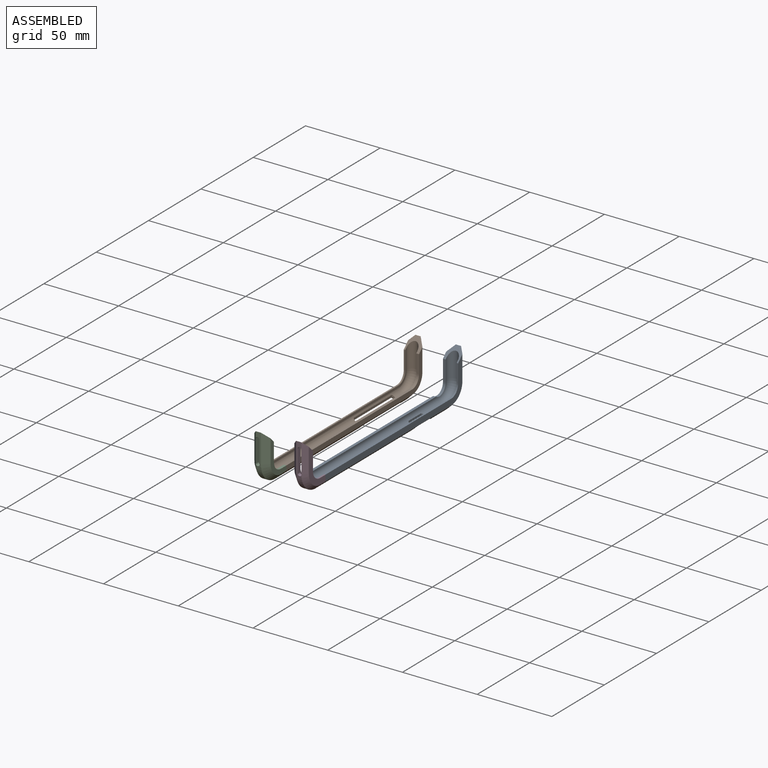
[diagram: assembled view]
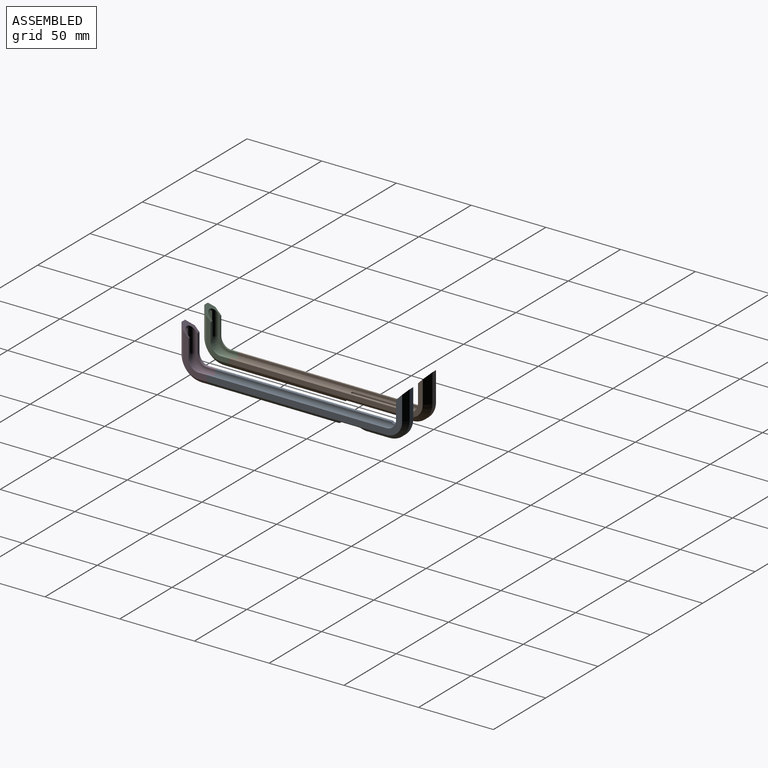
[diagram: assembled view, second angle]
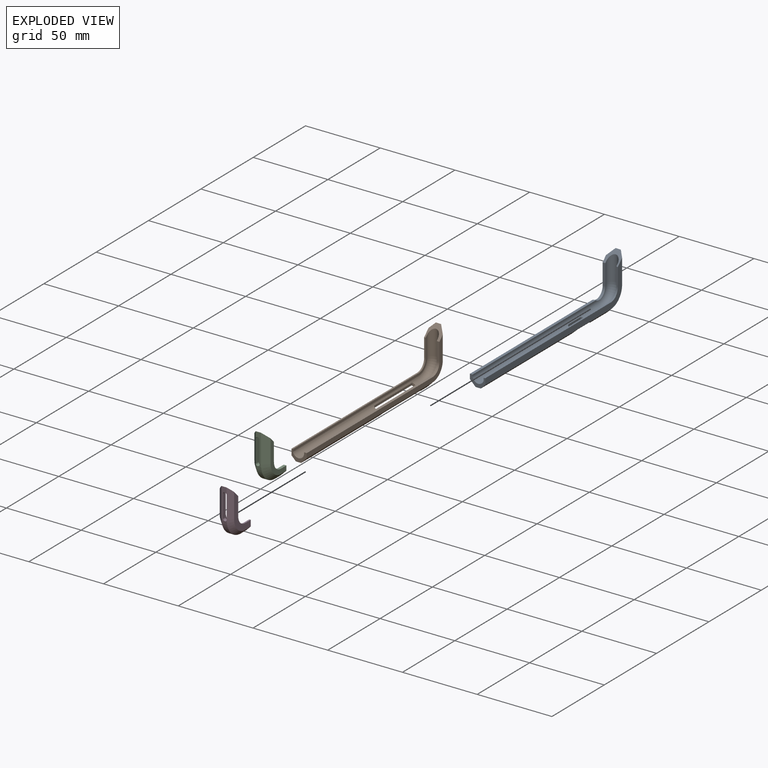
[diagram: exploded view]
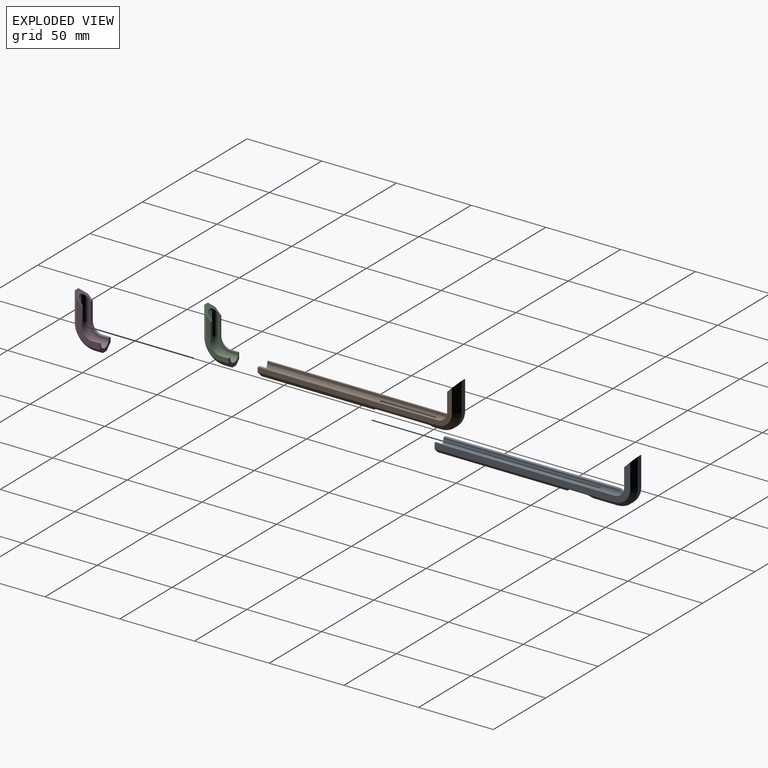
[diagram: exploded view, second angle]
ASSEMBLY  parts=4 mates=2
PART A: 46 faces, bbox 40.2x140.5x17 mm
  f0: plane 130.83x27.04mm, normal (0,0,1), area 601.6mm2, adj f6,f9,f11,f13,f20,f43,f44,f45
  f1: plane 128.43x22.2mm, normal (0,0,-1), area 241mm2, adj f4,f9,f10,f13,f17,f43,f44,f45
  f2: plane 129.96x25.28mm, normal (0,0,-1), area 454.4mm2, adj f7,f8,f15,f16,f18,f22,f44,f45
  f3: plane 119.14x0.83mm, normal (0,0,1), area 97.5mm2, adj f4,f8,f18,f45
  f4: cylinder r=3.75mm len=120.16mm, axis (0,-1,0), area 1234.1mm2, adj f1,f3,f17,f18,f23,f24,f25,f26
  f5: plane 86.94x3.5mm, normal (1,0,0), area 304mm2, adj f6,f7,f37,f38,f39,f45
  f6: plane 120.17x2.94mm, normal (0.71,0,0.71), area 452.1mm2, adj f0,f5,f19,f20,f31,f32,f33,f37
  f7: plane 120.47x4.11mm, normal (0.71,0,-0.71), area 611.7mm2, adj f2,f5,f19,f22,f34,f35,f36,f39
  f8: plane 117.43x1.8mm, normal (-1,0,0), area 211.4mm2, adj f2,f3,f18,f45
  f9: plane 120.16x1.02mm, normal (-1,0,0), area 122.1mm2, adj f0,f1,f43,f45
  f10: cylinder r=3.75mm len=13.92mm, axis (1,0,0), area 147.9mm2, adj f1,f14,f17,f44
  f11: plane 19.34x2.92mm, normal (0,0.71,0.71), area 73.8mm2, adj f0,f12,f20,f44
  f12: plane 19.34x3.5mm, normal (0,1,0), area 67.7mm2, adj f11,f15,f21,f44
  f13: plane 12.23x1.02mm, normal (0,-1,0), area 12.4mm2, adj f0,f1,f43,f44
  f14: plane 17.28x1.29mm, normal (0,0,1), area 11.4mm2, adj f10,f16,f17,f18,f44
  f15: plane 19.34x3.8mm, normal (0,0.71,-0.71), area 93.6mm2, adj f2,f12,f22,f44
  f16: plane 14.02x1.8mm, normal (0,-1,0), area 25.2mm2, adj f2,f14,f18,f44
  f17: torus R=7.45mm, axis (0,0,-1), area 169.7mm2, adj f1,f4,f10,f14,f18
  f18: cylinder r=6mm len=9.43mm, axis (0,0,1), area 23.6mm2, adj f2,f3,f4,f8,f14,f16,f17
  f19: plane 15.89x3.5mm, normal (1,0,0), area 55.3mm2, adj f6,f7,f21,f40,f41,f42
  f20: cone r=13.6mm half-angle=45deg, axis (0,0,-1), area 78.8mm2, adj f0,f6,f11,f21
  f21: cylinder r=13.6mm len=13.6mm, axis (0,0,-1), area 74.8mm2, adj f12,f19,f20,f22
  f22: cone r=9.8mm half-angle=45deg, axis (0,0,1), area 98.8mm2, adj f2,f7,f15,f21
  f23: cylinder r=1.5mm len=1.61mm, axis (-1,0,0), area 2.7mm2, adj f4,f24,f30,f34,f42
  f24: plane 11x1.36mm, normal (0,0,1), area 14.9mm2, adj f4,f23,f25,f35
  f25: cylinder r=1.5mm len=1.61mm, axis (-1,0,0), area 2.7mm2, adj f4,f24,f26,f36,f39
  f26: plane 2.5x0.96mm, normal (0,1,0), area 1.8mm2, adj f4,f25,f27,f38
  f27: cylinder r=1.5mm len=2.15mm, axis (-1,0,0), area 3.2mm2, adj f4,f26,f28,f33,f37
  f28: plane 11x1.4mm, normal (0,0,-1), area 15.4mm2, adj f4,f27,f29,f32
  f29: cylinder r=1.5mm len=2.15mm, axis (-1,0,0), area 3.2mm2, adj f4,f28,f30,f31,f40
  f30: plane 2.5x0.96mm, normal (0,-1,0), area 1.8mm2, adj f4,f23,f29,f41
  f31: bspline ~2.7x2.63mm, area 1.9mm2, adj f6,f29,f32,f40
  f32: plane 11x0.88mm, normal (0.92,0,-0.38), area 10.5mm2, adj f6,f28,f31,f33
  f33: bspline ~2.7x2.63mm, area 1.9mm2, adj f6,f27,f32,f37
  f34: bspline ~1.49x1.38mm, area 1.2mm2, adj f7,f23,f35,f42
  f35: plane 11x0.88mm, normal (0.92,0,0.38), area 10.5mm2, adj f7,f24,f34,f36
  f36: bspline ~2.56x2.52mm, area 1.2mm2, adj f7,f25,f35,f39
  f37: cone r=3.25mm half-angle=45deg, axis (1,0,0), area 2.4mm2, adj f5,f6,f27,f33,f38
  f38: plane 2.5x1.75mm, normal (0.71,0.71,0), area 6.2mm2, adj f5,f26,f37,f39
  f39: cone r=3.25mm half-angle=45deg, axis (1,0,0), area 4mm2, adj f5,f7,f25,f36,f38
  f40: cone r=1.5mm half-angle=45deg, axis (1,0,0), area 2.4mm2, adj f6,f19,f29,f31,f41
  f41: plane 2.5x1.75mm, normal (0.71,-0.71,0), area 6.2mm2, adj f19,f30,f40,f42
  f42: cone r=1.5mm half-angle=45deg, axis (1,0,0), area 4mm2, adj f7,f19,f23,f34,f41
  f43: cylinder r=6.61mm len=6.61mm, axis (0,0,1), area 10.6mm2, adj f0,f1,f9,f13
  f44: plane 16.97x13.85mm, normal (-0.7,-0.71,0), area 45mm2, adj f0,f1,f2,f10,f11,f12,f13,f14
  f45: plane 10.22x6.99mm, normal (0,-1,0), area 31.7mm2, adj f0,f1,f2,f3,f4,f5,f6,f7
PART B: 194 faces, bbox 39.7x140.5x17 mm
  f0: plane 127.61x20.53mm, normal (0,0,1), area 118.7mm2, adj f7,f9,f16,f19,f44,f46,f192,f193
  f1: plane 129.96x25.28mm, normal (0,0,-1), area 466.5mm2, adj f6,f7,f16,f17,f43,f44,f192,f193
  f2: plane 128.43x22.2mm, normal (0,0,-1), area 241mm2, adj f8,f9,f19,f45,f46,f47,f192,f193
  f3: plane 130.83x27.04mm, normal (0,0,1), area 601.6mm2, adj f5,f8,f41,f45,f47,f48,f192,f193
  f4: plane 14.8x3.52mm, normal (-1,0,0), area 44.7mm2, adj f5,f6,f59,f60,f61,f62,f63,f64
  f5: plane 120.2x2.97mm, normal (-0.71,0,0.71), area 374.7mm2, adj f3,f4,f10,f11,f12,f24,f25,f26
  f6: plane 120.2x3.85mm, normal (-0.71,0,-0.71), area 578mm2, adj f1,f4,f10,f11,f12,f13,f14,f15
  f7: plane 120.16x1.8mm, normal (1,0,0), area 216.3mm2, adj f0,f1,f44,f193
  f8: plane 120.16x1.02mm, normal (1,0,0), area 122.1mm2, adj f2,f3,f45,f193
  f9: cylinder r=3.75mm len=120.16mm, axis (0,1,0), area 1094.1mm2, adj f0,f2,f33,f34,f35,f36,f37,f38
  f10: plane 7.21x3.52mm, normal (-1,0,0), area 13.8mm2, adj f5,f6,f49,f50,f51,f52,f53,f54
  f11: plane 50.65x3.53mm, normal (-1,0,0), area 157mm2, adj f5,f6,f20,f21,f24,f29,f85,f86
  f12: plane 6.67x3.55mm, normal (-1,0,0), area 15.7mm2, adj f5,f6,f80,f81,f82,f83,f95,f96
  f13: plane 1.85x1.08mm, normal (-1,0,0), area 1.6mm2, adj f6,f180,f186,f187
  f14: plane 1.85x1.08mm, normal (-1,0,0), area 1.6mm2, adj f6,f166,f172,f173
  f15: plane 1.66x1.4mm, normal (-1,0,0), area 1.4mm2, adj f6,f148,f159,f160
  f16: plane 12.25x1.8mm, normal (0,-1,0), area 22mm2, adj f0,f1,f44,f192
  f17: plane 19.34x3.8mm, normal (0,0.71,-0.71), area 93.6mm2, adj f1,f18,f43,f192
  f18: plane 19.34x3.5mm, normal (0,1,0), area 67.7mm2, adj f17,f42,f48,f192
  f19: cylinder r=3.75mm len=13.92mm, axis (1,0,0), area 147.9mm2, adj f0,f2,f46,f192
  f20: plane 2.86x0.51mm, normal (-0.71,0.71,0), area 2mm2, adj f11,f21,f24,f33
  f21: cone r=1.51mm half-angle=45deg, axis (-1,0,0), area 0.3mm2, adj f11,f20,f29,f34
  f22: cone r=1.51mm half-angle=45deg, axis (-1,0,0), area 0.3mm2, adj f23,f30,f32,f36
  f23: plane 2.86x0.51mm, normal (-0.71,-0.71,0), area 2mm2, adj f22,f28,f32,f37
  f24: plane 1.11x0.97mm, normal (-0.5,0.71,0.5), area 0.7mm2, adj f5,f11,f20,f25,f33
  f25: bspline ~1.91x1.91mm, area 2.2mm2, adj f5,f24,f26,f40
  f26: plane 35.65x0.88mm, normal (-0.92,0,-0.38), area 34.1mm2, adj f5,f25,f27,f39
  f27: bspline ~1.91x1.91mm, area 2.2mm2, adj f5,f26,f28,f38
  f28: plane 1.11x0.97mm, normal (-0.5,-0.71,0.5), area 0.7mm2, adj f5,f23,f27,f32,f37
  f29: bspline ~1.75x1.69mm, area 2mm2, adj f6,f11,f21,f31,f34
  f30: bspline ~1.75x1.69mm, area 2mm2, adj f6,f22,f31,f32,f36
  f31: plane 35.65x0.88mm, normal (-0.92,0,0.38), area 34.1mm2, adj f6,f29,f30,f35
  f32: plane 5.88x3.5mm, normal (-1,0,0), area 20.3mm2, adj f5,f6,f22,f23,f28,f30,f42
  f33: plane 3.25x2.55mm, normal (0,1,0), area 6.5mm2, adj f9,f20,f24,f34,f40
  f34: cylinder r=1mm len=2.55mm, axis (1,0,0), area 2.7mm2, adj f9,f21,f29,f33,f35
  f35: plane 35.65x1.44mm, normal (0,0,1), area 51.2mm2, adj f9,f31,f34,f36
  f36: cylinder r=1mm len=2.55mm, axis (1,0,0), area 2.7mm2, adj f9,f22,f30,f35,f37
  f37: plane 3.25x2.55mm, normal (0,-1,0), area 6.5mm2, adj f9,f23,f28,f36,f38
  f38: cylinder r=1mm len=2.97mm, axis (1,0,0), area 2.7mm2, adj f9,f27,f37,f39
  f39: plane 35.65x1.45mm, normal (0,0,-1), area 51.8mm2, adj f9,f26,f38,f40
  f40: cylinder r=1mm len=2.97mm, axis (1,0,0), area 2.7mm2, adj f9,f25,f33,f39
  f41: cone r=13.6mm half-angle=45deg, axis (0,0,-1), area 78.8mm2, adj f3,f5,f42,f48
  f42: cylinder r=13.6mm len=13.6mm, axis (0,0,-1), area 74.8mm2, adj f18,f32,f41,f43
  f43: cone r=9.8mm half-angle=45deg, axis (0,0,1), area 98.8mm2, adj f1,f6,f17,f42
  f44: cylinder r=6.62mm len=6.63mm, axis (0,0,-1), area 18.7mm2, adj f0,f1,f7,f16
  f45: cylinder r=6.61mm len=6.61mm, axis (0,0,1), area 10.6mm2, adj f2,f3,f8,f47
  f46: torus R=7.45mm, axis (0,0,-1), area 171.8mm2, adj f0,f2,f9,f19
  f47: plane 12.23x1.02mm, normal (0,-1,0), area 12.4mm2, adj f2,f3,f45,f192
  f48: plane 19.34x2.92mm, normal (0,0.71,0.71), area 73.8mm2, adj f3,f18,f41,f192
  f49: extruded ~0.84x0.25mm, area 0.2mm2, adj f5,f10,f50,f68,f69
  f50: extruded ~0.65x0.31mm, area 0.2mm2, adj f10,f49,f51,f69
  f51: extruded ~0.63x0.25mm, area 0.2mm2, adj f10,f50,f52,f69
  f52: extruded ~0.71x0.41mm, area 0.2mm2, adj f10,f51,f53,f69
  f53: extruded ~0.68x0.32mm, area 0.2mm2, adj f10,f52,f54,f69
  f54: extruded ~0.38x0.25mm, area 0.1mm2, adj f10,f53,f55,f69
  f55: extruded ~0.83x0.57mm, area 0.3mm2, adj f10,f54,f56,f69
  f56: extruded ~0.98x0.25mm, area 0.3mm2, adj f10,f55,f57,f69
  f57: plane 0.42x0.25mm, normal (0,-1,0), area 0.1mm2, adj f10,f56,f58,f69
  f58: extruded ~0.98x0.25mm, area 0.2mm2, adj f6,f10,f57,f59,f69
  f59: extruded ~0.93x0.26mm, area 0.2mm2, adj f4,f6,f58,f60,f69
  f60: extruded ~0.72x0.33mm, area 0.2mm2, adj f4,f59,f61,f69
  f61: extruded ~0.57x0.25mm, area 0.2mm2, adj f4,f60,f62,f69
  f62: extruded ~0.78x0.43mm, area 0.2mm2, adj f4,f61,f63,f69
  f63: extruded ~0.64x0.32mm, area 0.2mm2, adj f4,f62,f64,f69
  f64: extruded ~0.39x0.25mm, area 0.1mm2, adj f4,f63,f65,f69
  f65: extruded ~0.7x0.5mm, area 0.2mm2, adj f4,f64,f66,f69
  f66: extruded ~0.85x0.25mm, area 0.2mm2, adj f4,f65,f67,f69
  f67: plane 0.39x0.25mm, normal (0,0.93,0.36), area 0.1mm2, adj f4,f66,f68,f69
  f68: extruded ~0.99x0.25mm, area 0.3mm2, adj f4,f5,f49,f67,f69
  f69: plane 3.57x2.25mm, normal (-1,0,0), area 3mm2, adj f49,f50,f51,f52,f53,f54,f55,f56
  f70: extruded ~0.85x0.25mm, area 0.2mm2, adj f6,f10,f71,f83,f84
  f71: plane 0.38x0.25mm, normal (0,1,0), area 0.1mm2, adj f10,f70,f72,f84
  f72: extruded ~0.78x0.25mm, area 0.2mm2, adj f10,f71,f73,f84
  f73: extruded ~0.83x0.36mm, area 0.2mm2, adj f10,f72,f74,f84
  f74: extruded ~1.04x0.29mm, area 0.3mm2, adj f10,f73,f75,f84
  f75: extruded ~1.02x0.3mm, area 0.3mm2, adj f10,f74,f76,f84
  f76: extruded ~0.81x0.38mm, area 0.2mm2, adj f10,f75,f77,f84
  f77: extruded ~0.72x0.25mm, area 0.2mm2, adj f10,f76,f78,f84
  f78: plane 0.37x0.25mm, normal (0,0.89,0.45), area 0.1mm2, adj f10,f77,f79,f84
  f79: extruded ~0.91x0.25mm, area 0.2mm2, adj f5,f10,f78,f80,f84
  f80: extruded ~1.16x0.48mm, area 0.3mm2, adj f5,f12,f79,f81,f84
  f81: extruded ~1.3x0.43mm, area 0.4mm2, adj f12,f80,f82,f84
  f82: extruded ~1.32x0.39mm, area 0.4mm2, adj f12,f81,f83,f84
  f83: extruded ~1.12x0.47mm, area 0.3mm2, adj f6,f12,f70,f82,f84
  f84: plane 3.57x2.5mm, normal (-1,0,0), area 2.7mm2, adj f70,f71,f72,f73,f74,f75,f76,f77
  f85: extruded ~0.84x0.25mm, area 0.2mm2, adj f5,f11,f86,f104,f105
  f86: extruded ~0.65x0.31mm, area 0.2mm2, adj f11,f85,f87,f105
  f87: extruded ~0.63x0.25mm, area 0.2mm2, adj f11,f86,f88,f105
  f88: extruded ~0.71x0.41mm, area 0.2mm2, adj f11,f87,f89,f105
  f89: extruded ~0.68x0.32mm, area 0.2mm2, adj f11,f88,f90,f105
  f90: extruded ~0.38x0.25mm, area 0.1mm2, adj f11,f89,f91,f105
  f91: extruded ~0.83x0.57mm, area 0.3mm2, adj f11,f90,f92,f105
  f92: extruded ~0.98x0.25mm, area 0.3mm2, adj f11,f91,f93,f105
  f93: plane 0.42x0.25mm, normal (0,-1,0), area 0.1mm2, adj f11,f92,f94,f105
  f94: extruded ~0.98x0.25mm, area 0.2mm2, adj f6,f11,f93,f95,f105
  f95: extruded ~0.93x0.26mm, area 0.2mm2, adj f6,f12,f94,f96,f105
  f96: extruded ~0.72x0.33mm, area 0.2mm2, adj f12,f95,f97,f105
  f97: extruded ~0.57x0.25mm, area 0.2mm2, adj f12,f96,f98,f105
  f98: extruded ~0.78x0.43mm, area 0.2mm2, adj f12,f97,f99,f105
  f99: extruded ~0.64x0.32mm, area 0.2mm2, adj f12,f98,f100,f105
  f100: extruded ~0.39x0.25mm, area 0.1mm2, adj f12,f99,f101,f105
  f101: extruded ~0.7x0.5mm, area 0.2mm2, adj f12,f100,f102,f105
  f102: extruded ~0.85x0.25mm, area 0.2mm2, adj f12,f101,f103,f105
  f103: plane 0.39x0.25mm, normal (0,0.93,0.36), area 0.1mm2, adj f12,f102,f104,f105
  f104: extruded ~0.99x0.25mm, area 0.3mm2, adj f5,f12,f85,f103,f105
  f105: plane 3.57x2.25mm, normal (-1,0,0), area 3mm2, adj f85,f86,f87,f88,f89,f90,f91,f92
  f106: extruded ~0.9x0.3mm, area 0.2mm2, adj f6,f11,f107,f115,f116
  f107: extruded ~0.82x0.33mm, area 0.2mm2, adj f11,f106,f108,f116
  f108: plane 2.4x0.25mm, normal (0,1,0), area 0.6mm2, adj f11,f107,f109,f116
  f109: plane 0.44x0.25mm, normal (0,0,-1), area 0.1mm2, adj f11,f108,f110,f116
  f110: plane 2.4x0.25mm, normal (0,-1,0), area 0.6mm2, adj f11,f109,f111,f116
  f111: extruded ~0.54x0.25mm, area 0.2mm2, adj f11,f110,f112,f116
  f112: extruded ~0.6x0.25mm, area 0.2mm2, adj f11,f111,f113,f116
  f113: extruded ~0.73x0.25mm, area 0.2mm2, adj f11,f112,f114,f116
  f114: plane 0.39x0.25mm, normal (0,-1,0), area 0.1mm2, adj f11,f113,f115,f116
  f115: extruded ~0.77x0.25mm, area 0.2mm2, adj f6,f11,f106,f114,f116
  f116: plane 3.52x2mm, normal (-1,0,0), area 2mm2, adj f106,f107,f108,f109,f110,f111,f112,f113
  f117: plane 3.47x0.25mm, normal (0,-1,0), area 0.9mm2, adj f11,f118,f128,f129
  f118: plane 2x0.25mm, normal (0,0,1), area 0.5mm2, adj f6,f117,f119,f129
  f119: plane 0.39x0.25mm, normal (0,1,0), area 0.1mm2, adj f11,f118,f120,f129
  f120: plane 1.56x0.25mm, normal (0,0,-1), area 0.4mm2, adj f11,f119,f121,f129
  f121: plane 1.23x0.25mm, normal (0,1,0), area 0.3mm2, adj f11,f120,f122,f129
  f122: plane 1.47x0.25mm, normal (0,0,1), area 0.4mm2, adj f11,f121,f123,f129
  f123: plane 0.38x0.25mm, normal (0,1,0), area 0.1mm2, adj f11,f122,f124,f129
  f124: plane 1.47x0.25mm, normal (0,0,-1), area 0.4mm2, adj f11,f123,f125,f129
  f125: plane 1.07x0.25mm, normal (0,1,0), area 0.3mm2, adj f11,f124,f126,f129
  f126: plane 1.56x0.25mm, normal (0,0,1), area 0.4mm2, adj f11,f125,f127,f129
  f127: plane 0.39x0.25mm, normal (0,1,0), area 0.1mm2, adj f11,f126,f128,f129
  f128: plane 2x0.25mm, normal (0,0,-1), area 0.5mm2, adj f11,f117,f127,f129
  f129: plane 3.47x2mm, normal (-1,0,0), area 3.3mm2, adj f117,f118,f119,f120,f121,f122,f123,f124
  f130: plane 1.25x0.25mm, normal (0,1,0.08), area 0.3mm2, adj f11,f131,f133,f134
  f131: plane 0.56x0.25mm, normal (0,0,-1), area 0.1mm2, adj f11,f130,f132,f134
  f132: plane 1.25x0.25mm, normal (0,-1,0.08), area 0.3mm2, adj f11,f131,f133,f134
  f133: plane 0.37x0.25mm, normal (0,0,1), area 0.1mm2, adj f11,f130,f132,f134
  f134: plane 1.25x0.56mm, normal (-1,0,0), area 0.6mm2, adj f130,f131,f132,f133
  f135: plane 3.47x0.25mm, normal (0,-1,0), area 0.9mm2, adj f4,f136,f146,f147
  f136: plane 2x0.25mm, normal (0,0,1), area 0.5mm2, adj f6,f135,f137,f147
  f137: plane 0.39x0.25mm, normal (0,1,0), area 0.1mm2, adj f4,f136,f138,f147
  f138: plane 1.56x0.25mm, normal (0,0,-1), area 0.4mm2, adj f4,f137,f139,f147
  f139: plane 1.23x0.25mm, normal (0,1,0), area 0.3mm2, adj f4,f138,f140,f147
  f140: plane 1.47x0.25mm, normal (0,0,1), area 0.4mm2, adj f4,f139,f141,f147
  f141: plane 0.38x0.25mm, normal (0,1,0), area 0.1mm2, adj f4,f140,f142,f147
  f142: plane 1.47x0.25mm, normal (0,0,-1), area 0.4mm2, adj f4,f141,f143,f147
  f143: plane 1.07x0.25mm, normal (0,1,0), area 0.3mm2, adj f4,f142,f144,f147
  f144: plane 1.56x0.25mm, normal (0,0,1), area 0.4mm2, adj f4,f143,f145,f147
  f145: plane 0.39x0.25mm, normal (0,1,0), area 0.1mm2, adj f4,f144,f146,f147
  f146: plane 2x0.25mm, normal (0,0,-1), area 0.5mm2, adj f4,f135,f145,f147
  f147: plane 3.47x2mm, normal (-1,0,0), area 3.3mm2, adj f135,f136,f137,f138,f139,f140,f141,f142
  f148: plane 1.66x1.07mm, normal (0,-0.84,0.54), area 0.5mm2, adj f15,f149,f160,f161
  f149: plane 0.5x0.25mm, normal (0,0,1), area 0.1mm2, adj f6,f148,f150,f161
  f150: plane 1.96x1.28mm, normal (0,0.84,-0.55), area 0.6mm2, adj f11,f149,f151,f161
  f151: plane 1.51x1.24mm, normal (0,0.77,0.63), area 0.5mm2, adj f11,f150,f152,f161
  f152: plane 0.5x0.25mm, normal (0,0,-1), area 0.1mm2, adj f11,f151,f153,f161
  f153: plane 1.34x1.07mm, normal (0,-0.78,-0.63), area 0.4mm2, adj f11,f152,f154,f161
  f154: plane 0.4x0.29mm, normal (0,-0.81,-0.58), area 0.1mm2, adj f11,f153,f155,f161
  f155: plane 1.74x0.25mm, normal (0,1,0), area 0.4mm2, adj f11,f154,f156,f161
  f156: plane 0.44x0.25mm, normal (0,0,-1), area 0.1mm2, adj f11,f155,f157,f161
  f157: plane 3.47x0.25mm, normal (0,-1,0), area 0.9mm2, adj f11,f156,f158,f161
  f158: plane 0.44x0.25mm, normal (0,0,1), area 0.1mm2, adj f6,f157,f159,f161
  f159: plane 1.39x0.25mm, normal (0,1,0), area 0.4mm2, adj f15,f158,f160,f161
  f160: plane 0.33x0.27mm, normal (0,0.63,0.78), area 0.1mm2, adj f15,f148,f159,f161
  f161: plane 3.47x2.34mm, normal (-1,0,0), area 3.3mm2, adj f148,f149,f150,f151,f152,f153,f154,f155
  f162: plane 1.01x0.32mm, normal (0,-0.95,0.3), area 0.3mm2, adj f163,f174,f175,f190
  f163: plane 0.91x0.25mm, normal (0,0,-1), area 0.2mm2, adj f162,f164,f175,f190
  f164: plane 1.11x0.34mm, normal (0,0.96,0.29), area 0.3mm2, adj f163,f165,f175,f190
  f165: extruded ~0.43x0.25mm, area 0.1mm2, adj f164,f174,f175,f190
  f166: plane 1.08x0.34mm, normal (0,-0.95,0.3), area 0.3mm2, adj f14,f167,f173,f175
  f167: plane 0.46x0.25mm, normal (0,0,1), area 0.1mm2, adj f6,f166,f168,f175
  f168: plane 3.49x1.15mm, normal (0,0.95,-0.31), area 0.9mm2, adj f11,f167,f169,f175
  f169: plane 0.46x0.25mm, normal (0,0,-1), area 0.1mm2, adj f11,f168,f170,f175
  f170: plane 3.49x1.15mm, normal (0,-0.95,-0.31), area 0.9mm2, adj f11,f169,f171,f175
  f171: plane 0.45x0.25mm, normal (0,0,1), area 0.1mm2, adj f6,f170,f172,f175
  f172: plane 1.08x0.35mm, normal (0,0.95,0.31), area 0.3mm2, adj f14,f171,f173,f175
  f173: plane 1.17x0.25mm, normal (0,0,1), area 0.3mm2, adj f14,f166,f172,f175
  f174: extruded ~0.54x0.25mm, area 0.1mm2, adj f162,f165,f175,f190
  f175: plane 3.49x2.76mm, normal (-1,0,0), area 3.3mm2, adj f162,f163,f164,f165,f166,f167,f168,f169
  f176: plane 1.01x0.32mm, normal (0,-0.95,0.3), area 0.3mm2, adj f177,f188,f189,f191
  f177: plane 0.91x0.25mm, normal (0,0,-1), area 0.2mm2, adj f176,f178,f189,f191
  f178: plane 1.11x0.34mm, normal (0,0.96,0.29), area 0.3mm2, adj f177,f179,f189,f191
  f179: extruded ~0.43x0.25mm, area 0.1mm2, adj f178,f188,f189,f191
  f180: plane 1.08x0.34mm, normal (0,-0.95,0.3), area 0.3mm2, adj f13,f181,f187,f189
  f181: plane 0.46x0.25mm, normal (0,0,1), area 0.1mm2, adj f6,f180,f182,f189
  f182: plane 3.49x1.15mm, normal (0,0.95,-0.31), area 0.9mm2, adj f10,f181,f183,f189
  f183: plane 0.46x0.25mm, normal (0,0,-1), area 0.1mm2, adj f10,f182,f184,f189
  f184: plane 3.49x1.15mm, normal (0,-0.95,-0.31), area 0.9mm2, adj f10,f183,f185,f189
  f185: plane 0.45x0.25mm, normal (0,0,1), area 0.1mm2, adj f6,f184,f186,f189
  f186: plane 1.08x0.35mm, normal (0,0.95,0.31), area 0.3mm2, adj f13,f185,f187,f189
  f187: plane 1.17x0.25mm, normal (0,0,1), area 0.3mm2, adj f13,f180,f186,f189
  f188: extruded ~0.54x0.25mm, area 0.1mm2, adj f176,f179,f189,f191
  f189: plane 3.49x2.76mm, normal (-1,0,0), area 3.3mm2, adj f176,f177,f178,f179,f180,f181,f182,f183
  f190: plane 1.54x0.91mm, normal (-1,0,0), area 0.7mm2, adj f162,f163,f164,f165,f174
  f191: plane 1.54x0.91mm, normal (-1,0,0), area 0.7mm2, adj f176,f177,f178,f179,f188
  f192: plane 16.97x13.85mm, normal (0.7,-0.71,0), area 45.2mm2, adj f0,f1,f2,f3,f16,f17,f18,f19
  f193: plane 10.22x6.99mm, normal (0,-1,0), area 31.7mm2, adj f0,f1,f2,f3,f4,f5,f6,f7
PART C: 28 faces, bbox 32.9x18.9x10.2 mm
  f0: cylinder r=1.25mm len=2.83mm, axis (0,1,0), area 10mm2, adj f1,f2,f4,f8
  f1: plane 19.34x3.5mm, normal (0,-1,0), area 28.2mm2, adj f0,f2,f5,f6,f9,f11
  f2: plane 15x2.48mm, normal (0,0,1), area 37.1mm2, adj f0,f1,f3,f8,f11,f16
  f3: cylinder r=1.25mm len=2.83mm, axis (0,1,0), area 10mm2, adj f2,f4,f11,f16
  f4: plane 15x2.84mm, normal (0,0,-1), area 42.5mm2, adj f0,f3,f5,f8,f12,f16
  f5: plane 19.34x2.92mm, normal (0,-0.71,0.71), area 73.8mm2, adj f1,f4,f9,f12,f26
  f6: plane 19.34x3.8mm, normal (0,-0.71,-0.71), area 93.6mm2, adj f1,f9,f13,f21
  f7: plane 12.25x1.8mm, normal (0,1,0), area 22mm2, adj f9,f14,f21,f25
  f8: cylinder r=3.75mm len=16.91mm, axis (-1,0,0), area 130.9mm2, adj f0,f2,f4,f9,f16,f24,f25
  f9: plane 10.22x7.1mm, normal (0.7,0.71,0), area 45mm2, adj f1,f5,f6,f7,f8,f10,f21,f24
  f10: plane 12.33x1.02mm, normal (0,1,0), area 12.5mm2, adj f9,f15,f24,f26
  f11: cylinder r=13.6mm len=13.6mm, axis (0,0,-1), area 71.8mm2, adj f1,f2,f3,f12,f13,f19
  f12: cone r=13.6mm half-angle=45deg, axis (0,0,-1), area 78.8mm2, adj f4,f5,f11,f17,f26
  f13: cone r=9.8mm half-angle=45deg, axis (0,0,1), area 98.8mm2, adj f6,f11,f18,f21
  f14: cylinder r=6.62mm len=6.63mm, axis (0,0,-1), area 18.7mm2, adj f7,f20,f21,f25
  f15: cylinder r=6.71mm len=6.71mm, axis (0,0,1), area 10.6mm2, adj f10,f22,f24,f26
  f16: torus R=7.45mm, axis (0,0,-1), area 168.7mm2, adj f2,f3,f4,f8,f23,f24,f25
  f17: plane 5.27x2.92mm, normal (-0.71,0,0.71), area 21.8mm2, adj f12,f19,f26,f27
  f18: plane 5.27x3.8mm, normal (-0.71,0,-0.71), area 28.3mm2, adj f13,f19,f21,f27
  f19: plane 5.27x3.5mm, normal (-1,0,0), area 18.5mm2, adj f11,f17,f18,f27
  f20: plane 5.27x1.8mm, normal (1,0,0), area 9.5mm2, adj f14,f21,f25,f27
  f21: plane 25.28x15.07mm, normal (0,0,-1), area 101.7mm2, adj f6,f7,f9,f13,f14,f18,f20,f27
  f22: plane 5.27x1.02mm, normal (1,0,0), area 5.4mm2, adj f15,f24,f26,f27
  f23: cylinder r=3.75mm len=7.41mm, axis (0,1,0), area 57.7mm2, adj f16,f24,f25,f27
  f24: plane 22.2x13.55mm, normal (0,0,-1), area 48.3mm2, adj f8,f9,f10,f15,f16,f22,f23,f27
  f25: plane 20.53x12.72mm, normal (0,0,1), area 23.9mm2, adj f7,f8,f9,f14,f16,f20,f23,f27
  f26: plane 27.04x15.95mm, normal (0,0,1), area 133.1mm2, adj f5,f9,f10,f12,f15,f17,f22,f27
  f27: plane 10.22x6.99mm, normal (0,1,0), area 31.7mm2, adj f17,f18,f19,f20,f21,f22,f23,f24
PART D: 28 faces, bbox 32.9x18.9x10.2 mm
  f0: cylinder r=1.25mm len=2.83mm, axis (0,1,0), area 10mm2, adj f1,f2,f4,f8
  f1: plane 19.34x3.5mm, normal (0,-1,0), area 28.2mm2, adj f0,f2,f5,f7,f9,f12
  f2: plane 15x2.48mm, normal (0,0,1), area 37.1mm2, adj f0,f1,f3,f8,f11,f12
  f3: cylinder r=1.25mm len=2.83mm, axis (0,1,0), area 10mm2, adj f2,f4,f11,f12
  f4: plane 15x2.84mm, normal (0,0,-1), area 42.5mm2, adj f0,f3,f5,f8,f11,f13
  f5: plane 19.34x2.92mm, normal (0,-0.71,0.71), area 73.8mm2, adj f1,f4,f9,f13,f26
  f6: plane 12.33x1.02mm, normal (0,1,0), area 12.5mm2, adj f9,f16,f25,f26
  f7: plane 19.34x3.8mm, normal (0,-0.71,-0.71), area 93.6mm2, adj f1,f9,f14,f23
  f8: cylinder r=3.75mm len=16.91mm, axis (-1,0,0), area 130.9mm2, adj f0,f2,f4,f9,f11,f19,f25
  f9: plane 10.22x7.1mm, normal (-0.7,0.71,0), area 45mm2, adj f1,f5,f6,f7,f8,f10,f19,f23
  f10: plane 12.25x1.8mm, normal (0,1,0), area 22mm2, adj f9,f15,f19,f23
  f11: torus R=7.45mm, axis (0,0,-1), area 168.7mm2, adj f2,f3,f4,f8,f17,f19,f25
  f12: cylinder r=13.6mm len=13.6mm, axis (0,0,-1), area 71.8mm2, adj f1,f2,f3,f13,f14,f22
  f13: cone r=13.6mm half-angle=45deg, axis (0,0,-1), area 78.8mm2, adj f4,f5,f12,f21,f26
  f14: cone r=9.8mm half-angle=45deg, axis (0,0,1), area 98.8mm2, adj f7,f12,f20,f23
  f15: cylinder r=6.62mm len=6.63mm, axis (0,0,-1), area 18.7mm2, adj f10,f18,f19,f23
  f16: cylinder r=6.71mm len=6.71mm, axis (0,0,1), area 10.6mm2, adj f6,f24,f25,f26
  f17: cylinder r=3.75mm len=7.41mm, axis (0,-1,0), area 57.7mm2, adj f11,f19,f25,f27
  f18: plane 5.27x1.8mm, normal (-1,0,0), area 9.5mm2, adj f15,f19,f23,f27
  f19: plane 20.53x12.72mm, normal (0,0,1), area 23.9mm2, adj f8,f9,f10,f11,f15,f17,f18,f27
  f20: plane 5.27x3.8mm, normal (0.71,0,-0.71), area 28.3mm2, adj f14,f22,f23,f27
  f21: plane 5.27x2.92mm, normal (0.71,0,0.71), area 21.8mm2, adj f13,f22,f26,f27
  f22: plane 5.27x3.5mm, normal (1,0,0), area 18.5mm2, adj f12,f20,f21,f27
  f23: plane 25.28x15.07mm, normal (0,0,-1), area 101.7mm2, adj f7,f9,f10,f14,f15,f18,f20,f27
  f24: plane 5.27x1.02mm, normal (-1,0,0), area 5.4mm2, adj f16,f25,f26,f27
  f25: plane 22.2x13.55mm, normal (0,0,-1), area 48.3mm2, adj f6,f8,f9,f11,f16,f17,f24,f27
  f26: plane 27.04x15.95mm, normal (0,0,1), area 133.1mm2, adj f5,f6,f9,f13,f16,f21,f24,f27
  f27: plane 10.22x6.99mm, normal (0,1,0), area 31.7mm2, adj f17,f18,f19,f20,f21,f22,f23,f24
PLACE A rot(axis=(0,1,0),90deg) t=(25.4,19.85,41.4)mm
PLACE B rot(axis=(0,-1,0),90deg) t=(0.09,17.38,41.4)mm
PLACE C rot(axis=(0,-1,0),90deg) t=(0.09,30.84,41.4)mm
PLACE D rot(axis=(0,1,0),90deg) t=(25.4,33.31,41.4)mm
MATE fastened D.f27 <-> A.f45  axis (0,1,0) through (24.91,-30.86,3)mm
MATE fastened C.f27 <-> B.f193  axis (0,1,0) through (0.58,-33.33,3)mm
